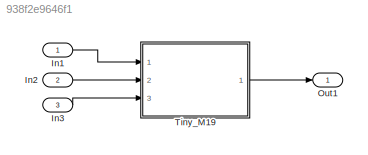
MODEL slx_938f2e9646f1
KIND model
CONFIG AbsTol = auto
CONFIG EnableMultiTasking = off
CONFIG FixedStep = auto
CONFIG MaxStep = auto
CONFIG MinStep = auto
CONFIG RelTol = 1e-3
CONFIG SampleTimeConstraint = Unconstrained
CONFIG Solver = VariableStepAuto
CONFIG SolverName = VariableStepAuto
CONFIG StartTime = 0.0
CONFIG StopTime = 10.0
BLOCK [Inport] In1
  IconDisplay = Port number
BLOCK [Inport] In2
  IconDisplay = Port number
  Port = 2
BLOCK [Inport] In3
  IconDisplay = Port number
  Port = 3
BLOCK [Outport] Out1
  IconDisplay = Port number
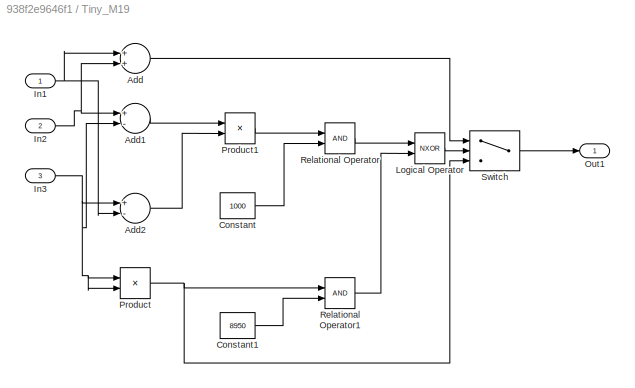
BLOCK [SubSystem] Tiny_M19
  Ports = [3, 1]
  RequestExecContextInheritance = off
  Variant = off
BLOCK [Sum] Tiny_M19/Add
  InputSameDT = off
  OutDataTypeStr = Inherit: Inherit via internal rule
  Ports = [2, 1]
  SaturateOnIntegerOverflow = off
BLOCK [Sum] Tiny_M19/Add1
  InputSameDT = off
  Inputs = +-
  OutDataTypeStr = Inherit: Inherit via internal rule
  Ports = [2, 1]
  SaturateOnIntegerOverflow = off
BLOCK [Sum] Tiny_M19/Add2
  InputSameDT = off
  Inputs = +-
  OutDataTypeStr = Inherit: Inherit via internal rule
  Ports = [2, 1]
  SaturateOnIntegerOverflow = off
BLOCK [Constant] Tiny_M19/Constant
  Value = 1000
BLOCK [Constant] Tiny_M19/Constant1
  Value = 8950
BLOCK [Inport] Tiny_M19/In1
  IconDisplay = Port number
BLOCK [Inport] Tiny_M19/In2
  IconDisplay = Port number
  Port = 2
BLOCK [Inport] Tiny_M19/In3
  IconDisplay = Port number
  Port = 3
BLOCK [Logic] Tiny_M19/Logical Operator
  AllPortsSameDT = off
  Operator = NXOR
  OutDataTypeStr = boolean
  Ports = [2, 1]
BLOCK [Outport] Tiny_M19/Out1
  IconDisplay = Port number
BLOCK [Product] Tiny_M19/Product
  InputSameDT = off
  OutDataTypeStr = Inherit: Inherit via internal rule
  Ports = [2, 1]
  RndMeth = Floor
  SaturateOnIntegerOverflow = off
BLOCK [Product] Tiny_M19/Product1
  InputSameDT = off
  OutDataTypeStr = Inherit: Inherit via internal rule
  Ports = [2, 1]
  RndMeth = Floor
  SaturateOnIntegerOverflow = off
BLOCK [RelationalOperator] Tiny_M19/Relational Operator
  InputSameDT = off
  OutDataTypeStr = boolean
  Ports = [2, 1]
BLOCK [RelationalOperator] Tiny_M19/Relational Operator1
  InputSameDT = off
  OutDataTypeStr = boolean
  Ports = [2, 1]
BLOCK [Switch] Tiny_M19/Switch
  InputSameDT = off
  SaturateOnIntegerOverflow = off
  Threshold = 1
LINE In1:1 -> Tiny_M19:1
LINE In2:1 -> Tiny_M19:2
LINE In3:1 -> Tiny_M19:3
LINE Tiny_M19/Add1:1 -> Tiny_M19/Product1:1
LINE Tiny_M19/Add2:1 -> Tiny_M19/Product1:2
LINE Tiny_M19/Add:1 -> Tiny_M19/Switch:1
LINE Tiny_M19/Constant1:1 -> Tiny_M19/Relational Operator1:2
LINE Tiny_M19/Constant:1 -> Tiny_M19/Relational Operator:2
NET Tiny_M19/In1:1 -> Tiny_M19/Add2:2, Tiny_M19/Add:1
NET Tiny_M19/In2:1 -> Tiny_M19/Add1:1, Tiny_M19/Add:2
NET Tiny_M19/In3:1 -> Tiny_M19/Add1:2, Tiny_M19/Add2:1, Tiny_M19/Product:1, Tiny_M19/Product:2
LINE Tiny_M19/Logical Operator:1 -> Tiny_M19/Switch:2
LINE Tiny_M19/Product1:1 -> Tiny_M19/Relational Operator:1
NET Tiny_M19/Product:1 -> Tiny_M19/Relational Operator1:1, Tiny_M19/Switch:3
LINE Tiny_M19/Relational Operator1:1 -> Tiny_M19/Logical Operator:2
LINE Tiny_M19/Relational Operator:1 -> Tiny_M19/Logical Operator:1
LINE Tiny_M19/Switch:1 -> Tiny_M19/Out1:1
LINE Tiny_M19:1 -> Out1:1
note: NET lines group one-source signal fan-out (src -> all destinations, sorted); 1:1 wires keep LINE
